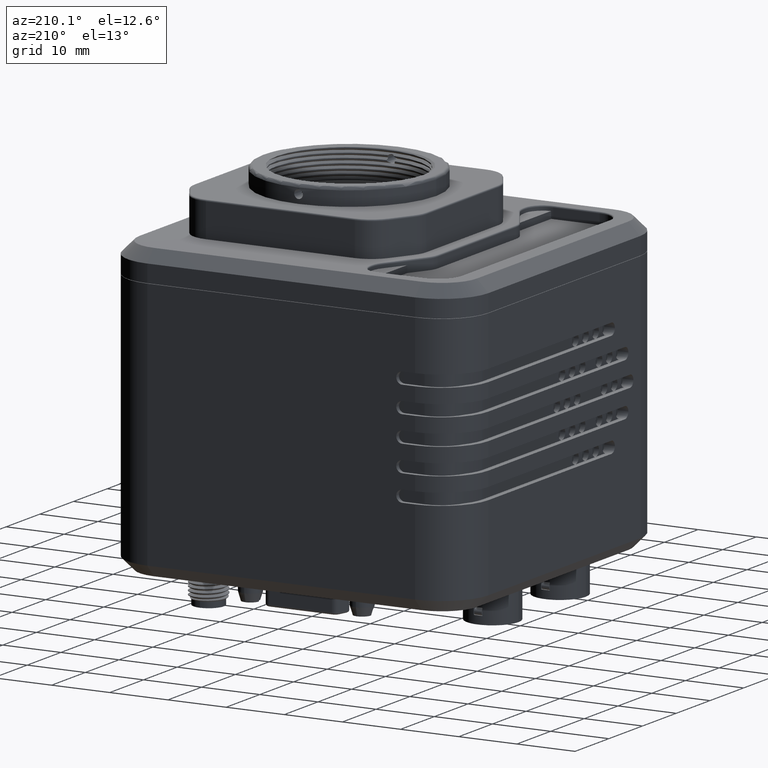
[diagram: clean part render]
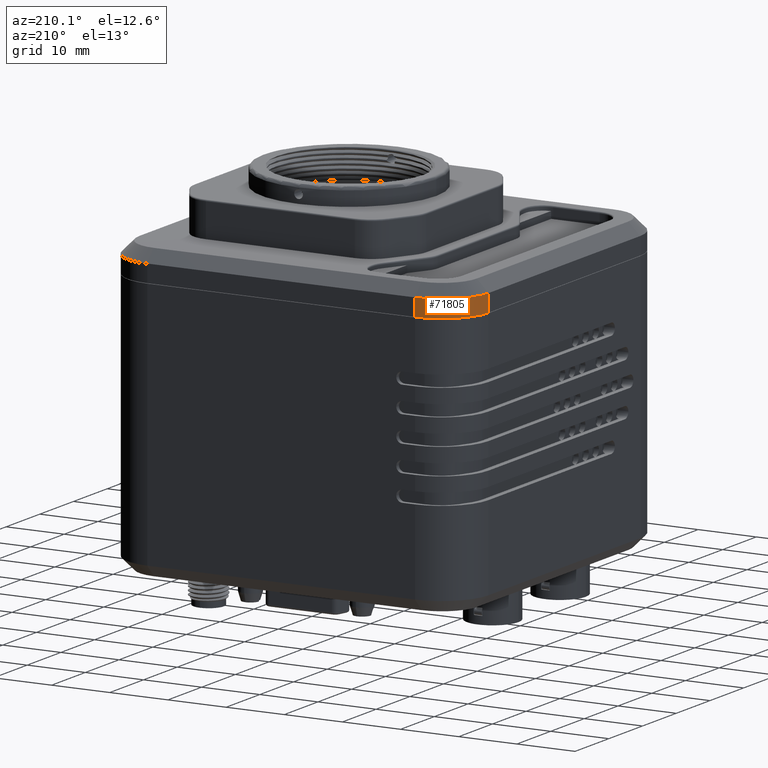
[diagram: same view with one face highlighted and labeled with its STEP entity id]
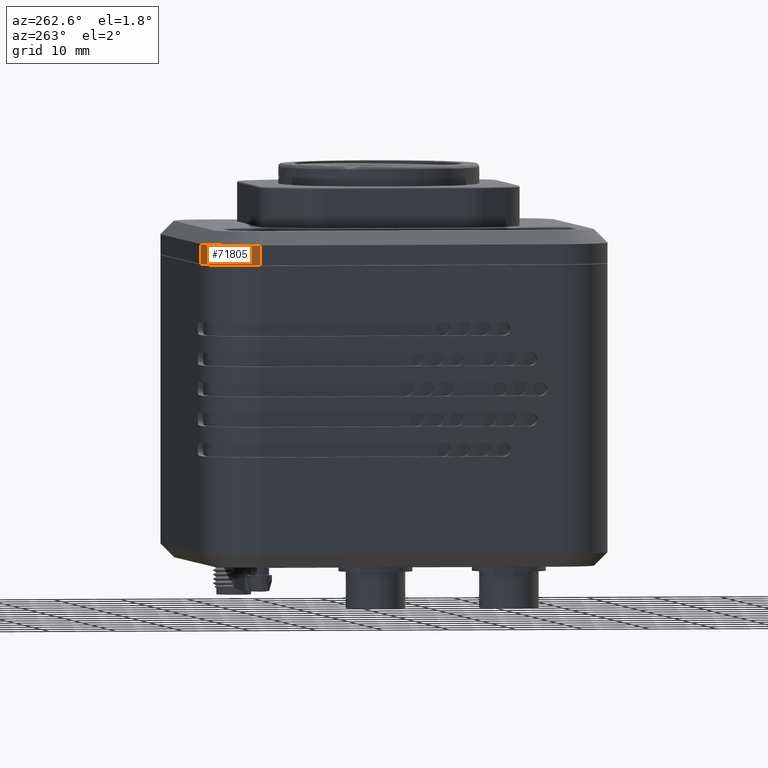
[diagram: same view with one face highlighted and labeled with its STEP entity id]
A machine part, auxiliary view. The second image highlights one B-rep face of the part: STEP entity #71805.
A second angle (auxiliary view) of the same face is appended — the face is thin or edge-on in the first view.
In plain terms, the highlighted cylindrical surface (partial cylindrical patch) has radius 8 mm, axis along (0, 0, -1).
Its self-contained STEP definition (entity closure, byte-faithful):
#219 = CARTESIAN_POINT ( 'NONE',  ( -17.78113167305999909, 42.86178579707100056, 30.58307532111199833 ) ) ;
#1055 = CARTESIAN_POINT ( 'NONE',  ( -9.781131673060002640, 50.86178579707100056, 30.58307532111199833 ) ) ;
#2948 = CARTESIAN_POINT ( 'NONE',  ( -9.781131673060002640, 42.86178579707100056, 30.58307532111199833 ) ) ;
#11824 = AXIS2_PLACEMENT_3D ( 'NONE', #23878, #46088, #62368 ) ;
#14423 = DIRECTION ( 'NONE',  ( 0.000000000000000000, 0.000000000000000000, -1.000000000000000000 ) ) ;
#16613 = VERTEX_POINT ( 'NONE', #48758 ) ;
#17551 = CARTESIAN_POINT ( 'NONE',  ( -9.781131673060002640, 50.86178579707100056, 41.58307532111199833 ) ) ;
#22323 = CIRCLE ( 'NONE', #32909, 8.000000000000000000 ) ;
#23075 = LINE ( 'NONE', #17551, #41255 ) ;
#23878 = CARTESIAN_POINT ( 'NONE',  ( -9.781131673060002640, 42.86178579707100056, 41.58307532111199833 ) ) ;
#25932 = EDGE_CURVE ( 'NONE', #16613, #64515, #23075, .T. ) ;
#30097 = CARTESIAN_POINT ( 'NONE',  ( -9.781131673060002640, 42.86178579707100056, 33.58307532112267779 ) ) ;
#32909 = AXIS2_PLACEMENT_3D ( 'NONE', #30097, #47113, #41557 ) ;
#34611 = CARTESIAN_POINT ( 'NONE',  ( -17.78113167305999909, 42.86178579707100056, 41.58307532111199833 ) ) ;
#34971 = CYLINDRICAL_SURFACE ( 'NONE', #11824, 8.000000000000000000 ) ;
#39648 = ORIENTED_EDGE ( 'NONE', *, *, #25932, .T. ) ;
#41129 = EDGE_CURVE ( 'NONE', #60855, #64515, #47652, .T. ) ;
#41255 = VECTOR ( 'NONE', #57104, 1000.000000000000000 ) ;
#41557 = DIRECTION ( 'NONE',  ( -1.000000000000000000, 0.000000000000000000, 0.000000000000000000 ) ) ;
#46088 = DIRECTION ( 'NONE',  ( 0.000000000000000000, 0.000000000000000000, -1.000000000000000000 ) ) ;
#47113 = DIRECTION ( 'NONE',  ( 0.000000000000000000, 0.000000000000000000, -1.000000000000000000 ) ) ;
#47652 = CIRCLE ( 'NONE', #61876, 8.000000000000000000 ) ;
#48585 = VECTOR ( 'NONE', #51268, 1000.000000000000000 ) ;
#48758 = CARTESIAN_POINT ( 'NONE',  ( -9.781131673060002640, 50.86178579707144820, 33.58307532111246019 ) ) ;
#51268 = DIRECTION ( 'NONE',  ( 0.000000000000000000, 0.000000000000000000, 1.000000000000000000 ) ) ;
#53968 = CARTESIAN_POINT ( 'NONE',  ( -17.78113167306834796, 42.86178579707100056, 33.58307532113100535 ) ) ;
#56804 = EDGE_LOOP ( 'NONE', ( #64953, #57161, #39648, #65271 ) ) ;
#57104 = DIRECTION ( 'NONE',  ( 0.000000000000000000, 0.000000000000000000, -1.000000000000000000 ) ) ;
#57161 = ORIENTED_EDGE ( 'NONE', *, *, #68833, .T. ) ;
#57186 = LINE ( 'NONE', #34611, #48585 ) ;
#60855 = VERTEX_POINT ( 'NONE', #219 ) ;
#61876 = AXIS2_PLACEMENT_3D ( 'NONE', #2948, #14423, #72082 ) ;
#62368 = DIRECTION ( 'NONE',  ( -1.000000000000000000, 0.000000000000000000, 0.000000000000000000 ) ) ;
#63092 = FACE_OUTER_BOUND ( 'NONE', #56804, .T. ) ;
#63169 = VERTEX_POINT ( 'NONE', #53968 ) ;
#64515 = VERTEX_POINT ( 'NONE', #1055 ) ;
#64953 = ORIENTED_EDGE ( 'NONE', *, *, #73057, .T. ) ;
#65271 = ORIENTED_EDGE ( 'NONE', *, *, #41129, .F. ) ;
#68833 = EDGE_CURVE ( 'NONE', #63169, #16613, #22323, .T. ) ;
#71805 = ADVANCED_FACE ( 'NONE', ( #63092 ), #34971, .T. ) ;
#72082 = DIRECTION ( 'NONE',  ( -1.000000000000000000, 0.000000000000000000, 0.000000000000000000 ) ) ;
#73057 = EDGE_CURVE ( 'NONE', #60855, #63169, #57186, .T. ) ;